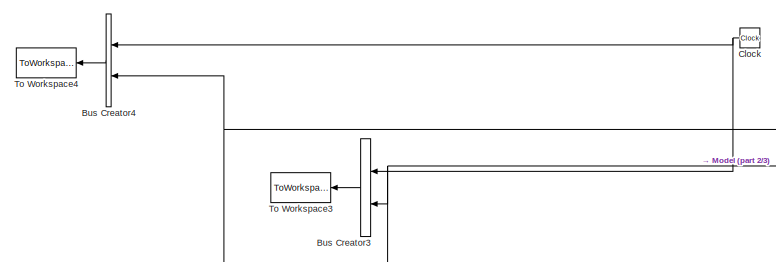
[diagram: root canvas - part 1/3, top left region]
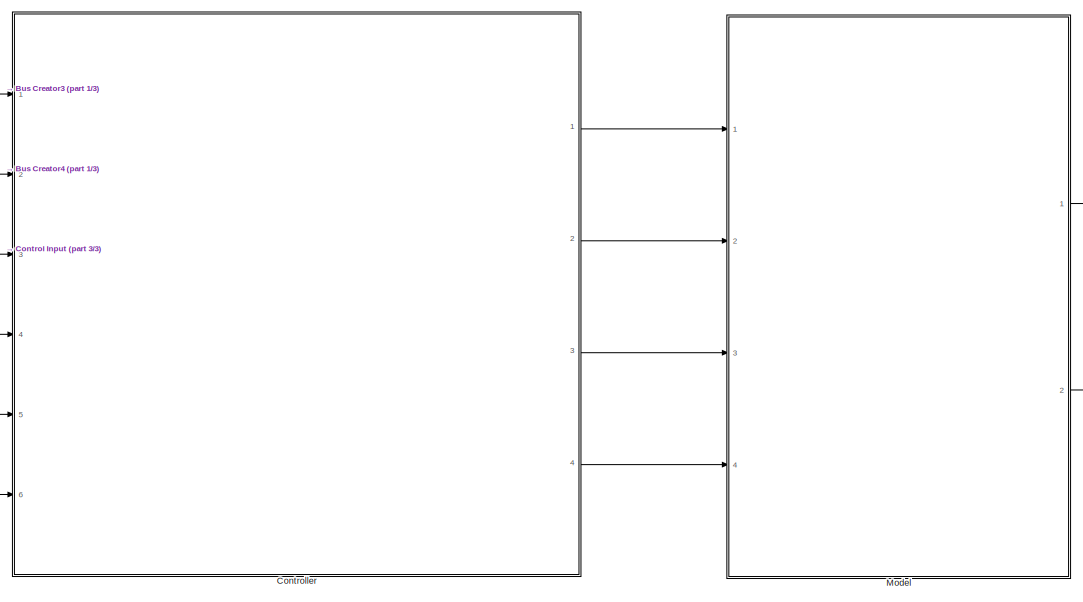
[diagram: root canvas - part 2/3, central region]
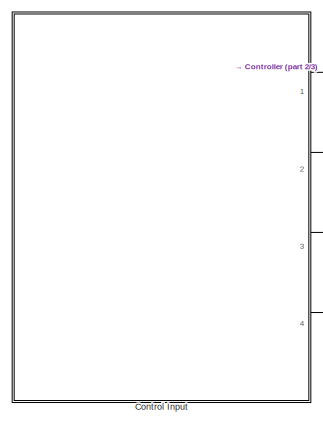
[diagram: root canvas - part 3/3, bottom left region]
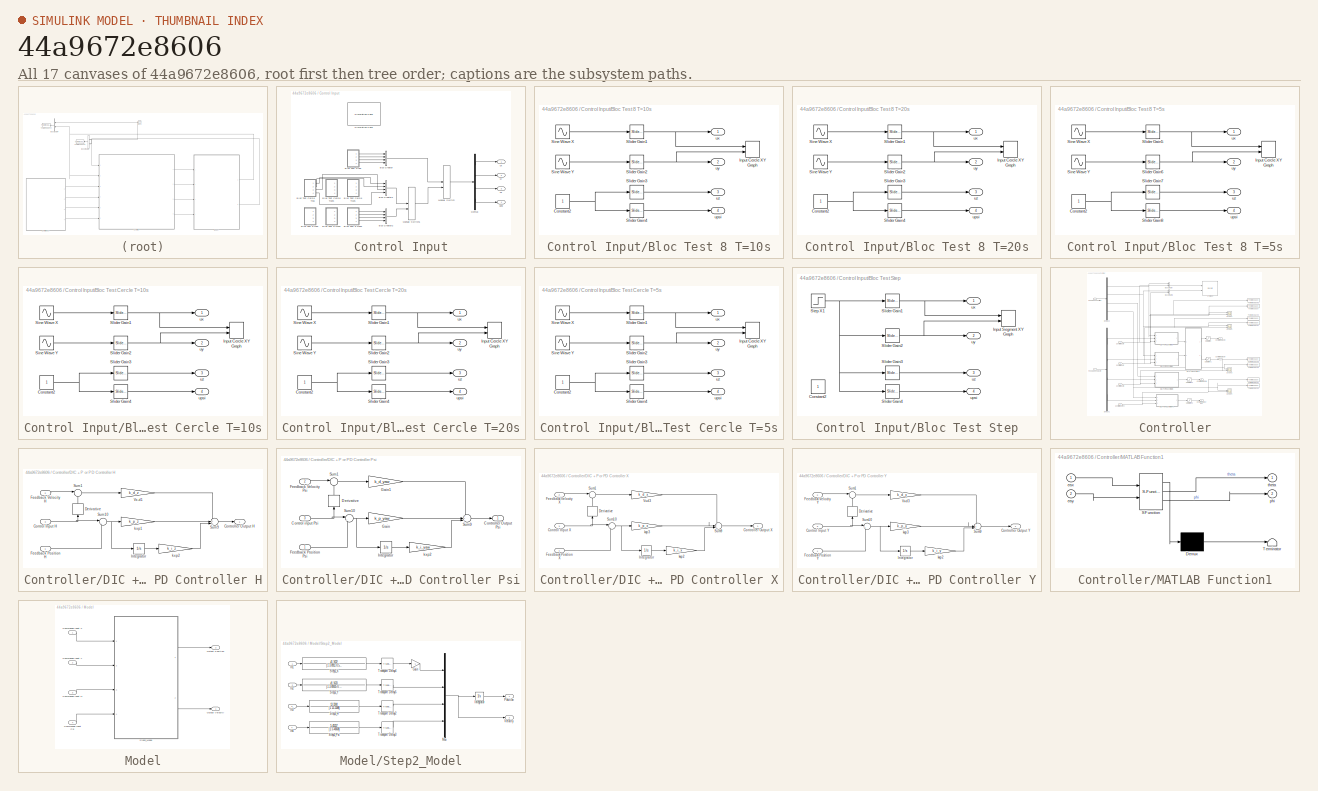
[diagram: thumbnail index - all 17 canvases of the model, root first then tree order]
MODEL slx_44a9672e8606
KIND model
CONFIG AbsTol = auto
CONFIG EnableMultiTasking = on
CONFIG FixedStep = sampleTime
CONFIG MaxStep = auto
CONFIG MinStep = auto
CONFIG RelTol = 1e-3
CONFIG SampleTimeConstraint = Unconstrained
CONFIG SolverName = FixedStepAuto
CONFIG StartTime = 0.0
CONFIG StopTime = 100
BLOCK [BusCreator] Bus Creator3
  DisplayOption = bar
  InheritFromInputs = on
  Inputs = 2
  NameLocation = top
  Ports = [2, 1]
BLOCK [BusCreator] Bus Creator4
  DisplayOption = bar
  InheritFromInputs = on
  Inputs = 2
  NameLocation = top
  Ports = [2, 1]
BLOCK [Clock] Clock
  NameLocation = top
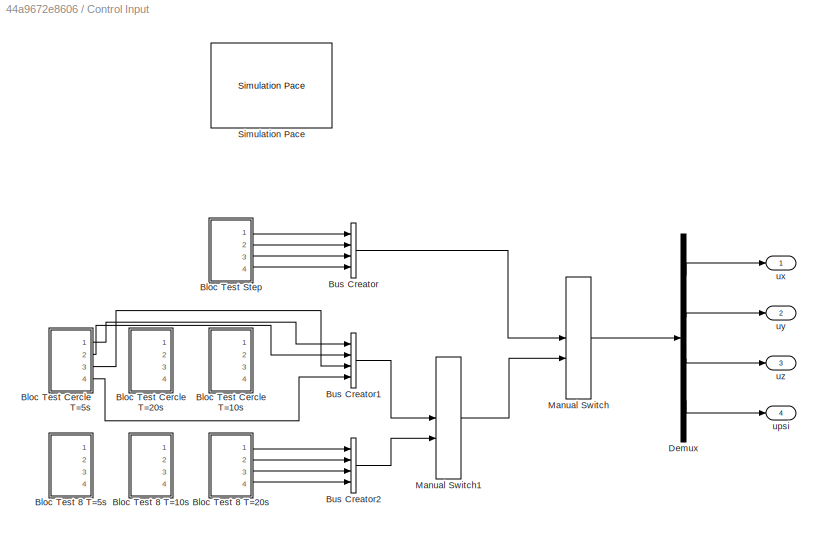
BLOCK [SubSystem] Control Input
  Ports = [0, 4]
  RequestExecContextInheritance = off
BLOCK [SubSystem] Control Input/Bloc Test 8 T=10s
  Ports = [0, 4]
  RequestExecContextInheritance = off
BLOCK [Constant] Control Input/Bloc Test 8 T=10s/Constant2
BLOCK [Record] Control Input/Bloc Test 8 T=10s/Input Cercle XY Graph
  Commented = on
  CompatibilityTag = XY
  FileSettingsInternal = {"entries":[{"content":{"excelSettings":{"content":{},"type":"Streamout.ExcelSettings"}},"type":"Streamout.FileSettingStorage","uuid":"c4616228-9442-4d5d-9d21-8391b6b13516"}],"packageUris":["http://schema.mathworks.com/mf0/streamout_blocks/R2020a"],"version":"1.0"}
  Layout = [1 1]
  Ports = [2]
  SignalsInternal = {"entries":[{"content":{"signals":[{"content":{"blockPath":["TF_TrajectoireFollowing_Segment/Control Input/Bloc Test  8 T=10s/Input Cercle XY Graph"],"channel":[],"dimensions":[1],"domain":"TF_TrajectoireFollowing_Segment/Control Input/Bloc Test  8 T=10s/Input Cercle XY Graph","lineColor":"#a2142f","plots":[1],"port":1,"sid":[],"signalID":76590,"signalName":"XY Graph:1"},"type":"RecordBlkView.Sign...<+643ch>
  VisualizationBindings = {"xyplotplugin":{"info":[{"series":[{"bindingParametersList":[{"parameter":"X-Axis","signalID":76590,"signalName":"XY Graph:1"},{"parameter":"Y-Axis","signalID":76593,"signalName":"XY Graph:2"}],"seriesID":29661}],"subplotID":1}]}}
  st = -1
BLOCK [Sin] Control Input/Bloc Test 8 T=10s/Sine Wave X
  Frequency = 0.65
  Ports = [0, 1]
  SampleTime = 0
BLOCK [Sin] Control Input/Bloc Test 8 T=10s/Sine Wave Y
  Frequency = 1.3
  Ports = [0, 1]
  SampleTime = 0
BLOCK [Reference] Control Input/Bloc Test 8 T=10s/Slider Gain1  REF=simulink/Math
Operations/Slider
Gain
  Ports = [1, 1]
  SourceBlock = simulink/Math\nOperations/Slider\nGain
  SourceProductBaseCode = SL
  SourceType = Slider Gain
BLOCK [Reference] Control Input/Bloc Test 8 T=10s/Slider Gain2  REF=simulink/Math
Operations/Slider
Gain
  Ports = [1, 1]
  SourceBlock = simulink/Math\nOperations/Slider\nGain
  SourceProductBaseCode = SL
  SourceType = Slider Gain
BLOCK [Reference] Control Input/Bloc Test 8 T=10s/Slider Gain3  REF=simulink/Math
Operations/Slider
Gain
  Ports = [1, 1]
  SourceBlock = simulink/Math\nOperations/Slider\nGain
  SourceProductBaseCode = SL
  SourceType = Slider Gain
BLOCK [Reference] Control Input/Bloc Test 8 T=10s/Slider Gain4  REF=simulink/Math
Operations/Slider
Gain
  Ports = [1, 1]
  SourceBlock = simulink/Math\nOperations/Slider\nGain
  SourceProductBaseCode = SL
  SourceType = Slider Gain
BLOCK [Outport] Control Input/Bloc Test 8 T=10s/upsi
  Port = 4
  VectorParamsAs1DForOutWhenUnconnected = off
BLOCK [Outport] Control Input/Bloc Test 8 T=10s/ux
  VectorParamsAs1DForOutWhenUnconnected = off
BLOCK [Outport] Control Input/Bloc Test 8 T=10s/uy
  Port = 2
  VectorParamsAs1DForOutWhenUnconnected = off
BLOCK [Outport] Control Input/Bloc Test 8 T=10s/uz
  Port = 3
  VectorParamsAs1DForOutWhenUnconnected = off
BLOCK [SubSystem] Control Input/Bloc Test 8 T=20s
  Ports = [0, 4]
  RequestExecContextInheritance = off
BLOCK [Constant] Control Input/Bloc Test 8 T=20s/Constant2
BLOCK [Record] Control Input/Bloc Test 8 T=20s/Input Cercle XY Graph
  Commented = on
  CompatibilityTag = XY
  FileSettingsInternal = {"entries":[{"content":{"excelSettings":{"content":{},"type":"Streamout.ExcelSettings"}},"type":"Streamout.FileSettingStorage","uuid":"76c6f109-e4fe-4fb6-9c69-41c085f80ba6"}],"packageUris":["http://schema.mathworks.com/mf0/streamout_blocks/R2020a"],"version":"1.0"}
  Layout = [1 1]
  Ports = [2]
  SignalsInternal = {"entries":[{"content":{"signals":[{"content":{"blockPath":["TF_TrajectoireFollowing_Segment/Control Input/Bloc Test  8 T=20s/Input Cercle XY Graph"],"channel":[],"dimensions":[1],"domain":"TF_TrajectoireFollowing_Segment/Control Input/Bloc Test  8 T=20s/Input Cercle XY Graph","lineColor":"#a2142f","plots":[1],"port":1,"sid":[],"signalID":76598,"signalName":"XY Graph:1"},"type":"RecordBlkView.Sign...<+643ch>
  VisualizationBindings = {"xyplotplugin":{"info":[{"series":[{"bindingParametersList":[{"parameter":"X-Axis","signalID":76598,"signalName":"XY Graph:1"},{"parameter":"Y-Axis","signalID":76601,"signalName":"XY Graph:2"}],"seriesID":37163}],"subplotID":1}]}}
  st = -1
BLOCK [Sin] Control Input/Bloc Test 8 T=20s/Sine Wave X
  Frequency = 0.35
  Ports = [0, 1]
  SampleTime = 0
BLOCK [Sin] Control Input/Bloc Test 8 T=20s/Sine Wave Y
  Frequency = 0.7
  Ports = [0, 1]
  SampleTime = 0
BLOCK [Reference] Control Input/Bloc Test 8 T=20s/Slider Gain1  REF=simulink/Math
Operations/Slider
Gain
  Ports = [1, 1]
  SourceBlock = simulink/Math\nOperations/Slider\nGain
  SourceProductBaseCode = SL
  SourceType = Slider Gain
BLOCK [Reference] Control Input/Bloc Test 8 T=20s/Slider Gain2  REF=simulink/Math
Operations/Slider
Gain
  Ports = [1, 1]
  SourceBlock = simulink/Math\nOperations/Slider\nGain
  SourceProductBaseCode = SL
  SourceType = Slider Gain
BLOCK [Reference] Control Input/Bloc Test 8 T=20s/Slider Gain3  REF=simulink/Math
Operations/Slider
Gain
  Ports = [1, 1]
  SourceBlock = simulink/Math\nOperations/Slider\nGain
  SourceProductBaseCode = SL
  SourceType = Slider Gain
BLOCK [Reference] Control Input/Bloc Test 8 T=20s/Slider Gain4  REF=simulink/Math
Operations/Slider
Gain
  Ports = [1, 1]
  SourceBlock = simulink/Math\nOperations/Slider\nGain
  SourceProductBaseCode = SL
  SourceType = Slider Gain
BLOCK [Outport] Control Input/Bloc Test 8 T=20s/upsi
  Port = 4
  VectorParamsAs1DForOutWhenUnconnected = off
BLOCK [Outport] Control Input/Bloc Test 8 T=20s/ux
  VectorParamsAs1DForOutWhenUnconnected = off
BLOCK [Outport] Control Input/Bloc Test 8 T=20s/uy
  Port = 2
  VectorParamsAs1DForOutWhenUnconnected = off
BLOCK [Outport] Control Input/Bloc Test 8 T=20s/uz
  Port = 3
  VectorParamsAs1DForOutWhenUnconnected = off
BLOCK [SubSystem] Control Input/Bloc Test 8 T=5s
  Ports = [0, 4]
  RequestExecContextInheritance = off
BLOCK [Constant] Control Input/Bloc Test 8 T=5s/Constant2
BLOCK [Record] Control Input/Bloc Test 8 T=5s/Input Cercle XY Graph
  Commented = on
  CompatibilityTag = XY
  FileSettingsInternal = {"entries":[{"content":{"excelSettings":{"content":{},"type":"Streamout.ExcelSettings"}},"type":"Streamout.FileSettingStorage","uuid":"2a20060e-f733-4b72-afce-4417f7fccb0b"}],"packageUris":["http://schema.mathworks.com/mf0/streamout_blocks/R2020a"],"version":"1.0"}
  Layout = [1 1]
  Ports = [2]
  SignalsInternal = {"entries":[{"content":{"signals":[{"content":{"blockPath":["TF_TrajectoireFollowing_Segment/Control Input/Bloc Test  8 T=5s/Input Cercle XY Graph"],"channel":[],"dimensions":[1],"domain":"TF_TrajectoireFollowing_Segment/Control Input/Bloc Test  8 T=5s/Input Cercle XY Graph","lineColor":"#a2142f","plots":[1],"port":1,"sid":[],"signalID":76606,"signalName":"XY Graph:1"},"type":"RecordBlkView.Signal...<+639ch>
  VisualizationBindings = {"xyplotplugin":{"info":[{"series":[{"bindingParametersList":[{"parameter":"X-Axis","signalID":76606,"signalName":"XY Graph:1"},{"parameter":"Y-Axis","signalID":76609,"signalName":"XY Graph:2"}],"seriesID":37458}],"subplotID":1}]}}
  st = -1
BLOCK [Sin] Control Input/Bloc Test 8 T=5s/Sine Wave X
  Ports = [0, 1]
  SampleTime = 0
BLOCK [Sin] Control Input/Bloc Test 8 T=5s/Sine Wave Y
  Frequency = 2
  Ports = [0, 1]
  SampleTime = 0
BLOCK [Reference] Control Input/Bloc Test 8 T=5s/Slider Gain5  REF=simulink/Math
Operations/Slider
Gain
  Ports = [1, 1]
  SourceBlock = simulink/Math\nOperations/Slider\nGain
  SourceProductBaseCode = SL
  SourceType = Slider Gain
BLOCK [Reference] Control Input/Bloc Test 8 T=5s/Slider Gain6  REF=simulink/Math
Operations/Slider
Gain
  Ports = [1, 1]
  SourceBlock = simulink/Math\nOperations/Slider\nGain
  SourceProductBaseCode = SL
  SourceType = Slider Gain
BLOCK [Reference] Control Input/Bloc Test 8 T=5s/Slider Gain7  REF=simulink/Math
Operations/Slider
Gain
  Ports = [1, 1]
  SourceBlock = simulink/Math\nOperations/Slider\nGain
  SourceProductBaseCode = SL
  SourceType = Slider Gain
BLOCK [Reference] Control Input/Bloc Test 8 T=5s/Slider Gain8  REF=simulink/Math
Operations/Slider
Gain
  Ports = [1, 1]
  SourceBlock = simulink/Math\nOperations/Slider\nGain
  SourceProductBaseCode = SL
  SourceType = Slider Gain
BLOCK [Outport] Control Input/Bloc Test 8 T=5s/upsi
  Port = 4
  VectorParamsAs1DForOutWhenUnconnected = off
BLOCK [Outport] Control Input/Bloc Test 8 T=5s/ux
  VectorParamsAs1DForOutWhenUnconnected = off
BLOCK [Outport] Control Input/Bloc Test 8 T=5s/uy
  Port = 2
  VectorParamsAs1DForOutWhenUnconnected = off
BLOCK [Outport] Control Input/Bloc Test 8 T=5s/uz
  Port = 3
  VectorParamsAs1DForOutWhenUnconnected = off
BLOCK [SubSystem] Control Input/Bloc Test Cercle T=10s
  Ports = [0, 4]
  RequestExecContextInheritance = off
BLOCK [Constant] Control Input/Bloc Test Cercle T=10s/Constant2
BLOCK [Record] Control Input/Bloc Test Cercle T=10s/Input Cercle XY Graph
  Commented = on
  CompatibilityTag = XY
  FileSettingsInternal = {"entries":[{"content":{"excelSettings":{"content":{},"type":"Streamout.ExcelSettings"}},"type":"Streamout.FileSettingStorage","uuid":"2ccd6f09-7f4b-44e5-a9c2-25654386dc05"}],"packageUris":["http://schema.mathworks.com/mf0/streamout_blocks/R2020a"],"version":"1.0"}
  Layout = [1 1]
  Ports = [2]
  SignalsInternal = {"entries":[{"content":{"signals":[{"content":{"blockPath":["TF_TrajectoireFollowing_Segment/Control Input/Bloc Test  Cercle T=10s/Input Cercle XY Graph"],"channel":[],"dimensions":[1],"domain":"TF_TrajectoireFollowing_Segment/Control Input/Bloc Test  Cercle T=10s/Input Cercle XY Graph","lineColor":"#a2142f","plots":[1],"port":1,"sid":[],"signalID":76614,"signalName":"XY Graph:1"},"type":"RecordBl...<+663ch>
  VisualizationBindings = {"xyplotplugin":{"info":[{"series":[{"bindingParametersList":[{"parameter":"X-Axis","signalID":76614,"signalName":"XY Graph:1"},{"parameter":"Y-Axis","signalID":76617,"signalName":"XY Graph:2"}],"seriesID":58776}],"subplotID":1}]}}
  st = -1
BLOCK [Sin] Control Input/Bloc Test Cercle T=10s/Sine Wave X
  Frequency = 0.65
  Ports = [0, 1]
  SampleTime = 0
BLOCK [Sin] Control Input/Bloc Test Cercle T=10s/Sine Wave Y
  Frequency = 0.65
  Phase = pi/2
  Ports = [0, 1]
  SampleTime = 0
BLOCK [Reference] Control Input/Bloc Test Cercle T=10s/Slider Gain1  REF=simulink/Math
Operations/Slider
Gain
  Ports = [1, 1]
  SourceBlock = simulink/Math\nOperations/Slider\nGain
  SourceProductBaseCode = SL
  SourceType = Slider Gain
BLOCK [Reference] Control Input/Bloc Test Cercle T=10s/Slider Gain2  REF=simulink/Math
Operations/Slider
Gain
  Ports = [1, 1]
  SourceBlock = simulink/Math\nOperations/Slider\nGain
  SourceProductBaseCode = SL
  SourceType = Slider Gain
BLOCK [Reference] Control Input/Bloc Test Cercle T=10s/Slider Gain3  REF=simulink/Math
Operations/Slider
Gain
  Ports = [1, 1]
  SourceBlock = simulink/Math\nOperations/Slider\nGain
  SourceProductBaseCode = SL
  SourceType = Slider Gain
BLOCK [Reference] Control Input/Bloc Test Cercle T=10s/Slider Gain4  REF=simulink/Math
Operations/Slider
Gain
  Ports = [1, 1]
  SourceBlock = simulink/Math\nOperations/Slider\nGain
  SourceProductBaseCode = SL
  SourceType = Slider Gain
BLOCK [Outport] Control Input/Bloc Test Cercle T=10s/upsi
  Port = 4
  VectorParamsAs1DForOutWhenUnconnected = off
BLOCK [Outport] Control Input/Bloc Test Cercle T=10s/ux
  VectorParamsAs1DForOutWhenUnconnected = off
BLOCK [Outport] Control Input/Bloc Test Cercle T=10s/uy
  Port = 2
  VectorParamsAs1DForOutWhenUnconnected = off
BLOCK [Outport] Control Input/Bloc Test Cercle T=10s/uz
  Port = 3
  VectorParamsAs1DForOutWhenUnconnected = off
BLOCK [SubSystem] Control Input/Bloc Test Cercle T=20s
  Ports = [0, 4]
  RequestExecContextInheritance = off
BLOCK [Constant] Control Input/Bloc Test Cercle T=20s/Constant2
BLOCK [Record] Control Input/Bloc Test Cercle T=20s/Input Cercle XY Graph
  Commented = on
  CompatibilityTag = XY
  FileSettingsInternal = {"entries":[{"content":{"excelSettings":{"content":{},"type":"Streamout.ExcelSettings"}},"type":"Streamout.FileSettingStorage","uuid":"f27aa7e8-62ac-4aa5-b51d-eb7641399cc6"}],"packageUris":["http://schema.mathworks.com/mf0/streamout_blocks/R2020a"],"version":"1.0"}
  Layout = [1 1]
  Ports = [2]
  SignalsInternal = {"entries":[{"content":{"signals":[{"content":{"blockPath":["TF_TrajectoireFollowing_Segment/Control Input/Bloc Test  Cercle T=20s/Input Cercle XY Graph"],"channel":[],"dimensions":[1],"domain":"TF_TrajectoireFollowing_Segment/Control Input/Bloc Test  Cercle T=20s/Input Cercle XY Graph","lineColor":"#a2142f","plots":[1],"port":1,"sid":[],"signalID":76622,"signalName":"XY Graph:1"},"type":"RecordBl...<+663ch>
  VisualizationBindings = {"xyplotplugin":{"info":[{"series":[{"bindingParametersList":[{"parameter":"X-Axis","signalID":76622,"signalName":"XY Graph:1"},{"parameter":"Y-Axis","signalID":76625,"signalName":"XY Graph:2"}],"seriesID":62067}],"subplotID":1}]}}
  st = -1
BLOCK [Sin] Control Input/Bloc Test Cercle T=20s/Sine Wave X
  Frequency = 0.35
  Ports = [0, 1]
  SampleTime = 0
BLOCK [Sin] Control Input/Bloc Test Cercle T=20s/Sine Wave Y
  Frequency = 0.35
  Phase = pi/2
  Ports = [0, 1]
  SampleTime = 0
BLOCK [Reference] Control Input/Bloc Test Cercle T=20s/Slider Gain1  REF=simulink/Math
Operations/Slider
Gain
  Ports = [1, 1]
  SourceBlock = simulink/Math\nOperations/Slider\nGain
  SourceProductBaseCode = SL
  SourceType = Slider Gain
BLOCK [Reference] Control Input/Bloc Test Cercle T=20s/Slider Gain2  REF=simulink/Math
Operations/Slider
Gain
  Ports = [1, 1]
  SourceBlock = simulink/Math\nOperations/Slider\nGain
  SourceProductBaseCode = SL
  SourceType = Slider Gain
BLOCK [Reference] Control Input/Bloc Test Cercle T=20s/Slider Gain3  REF=simulink/Math
Operations/Slider
Gain
  Ports = [1, 1]
  SourceBlock = simulink/Math\nOperations/Slider\nGain
  SourceProductBaseCode = SL
  SourceType = Slider Gain
BLOCK [Reference] Control Input/Bloc Test Cercle T=20s/Slider Gain4  REF=simulink/Math
Operations/Slider
Gain
  Ports = [1, 1]
  SourceBlock = simulink/Math\nOperations/Slider\nGain
  SourceProductBaseCode = SL
  SourceType = Slider Gain
BLOCK [Outport] Control Input/Bloc Test Cercle T=20s/upsi
  Port = 4
  VectorParamsAs1DForOutWhenUnconnected = off
BLOCK [Outport] Control Input/Bloc Test Cercle T=20s/ux
  VectorParamsAs1DForOutWhenUnconnected = off
BLOCK [Outport] Control Input/Bloc Test Cercle T=20s/uy
  Port = 2
  VectorParamsAs1DForOutWhenUnconnected = off
BLOCK [Outport] Control Input/Bloc Test Cercle T=20s/uz
  Port = 3
  VectorParamsAs1DForOutWhenUnconnected = off
BLOCK [SubSystem] Control Input/Bloc Test Cercle T=5s
  Ports = [0, 4]
  RequestExecContextInheritance = off
BLOCK [Constant] Control Input/Bloc Test Cercle T=5s/Constant2
BLOCK [Record] Control Input/Bloc Test Cercle T=5s/Input Cercle XY Graph
  Commented = on
  CompatibilityTag = XY
  FileSettingsInternal = {"entries":[{"content":{"excelSettings":{"content":{},"type":"Streamout.ExcelSettings"}},"type":"Streamout.FileSettingStorage","uuid":"c0d29a17-4a30-4159-b996-24eac29678bd"}],"packageUris":["http://schema.mathworks.com/mf0/streamout_blocks/R2020a"],"version":"1.0"}
  Layout = [1 1]
  Ports = [2]
  SignalsInternal = {"entries":[{"content":{"signals":[{"content":{"blockPath":["TF_TrajectoireFollowing_Segment/Control Input/Bloc Test  Cercle T=5s/Input Cercle XY Graph"],"channel":[],"dimensions":[1],"domain":"TF_TrajectoireFollowing_Segment/Control Input/Bloc Test  Cercle T=5s/Input Cercle XY Graph","lineColor":"#a2142f","plots":[1],"port":1,"sid":[],"signalID":76630,"signalName":"XY Graph:1"},"type":"RecordBlkV...<+659ch>
  VisualizationBindings = {"xyplotplugin":{"info":[{"series":[{"bindingParametersList":[{"parameter":"X-Axis","signalID":76630,"signalName":"XY Graph:1"},{"parameter":"Y-Axis","signalID":76633,"signalName":"XY Graph:2"}],"seriesID":15496}],"subplotID":1}]}}
  st = -1
BLOCK [Sin] Control Input/Bloc Test Cercle T=5s/Sine Wave X
  Ports = [0, 1]
  SampleTime = 0
BLOCK [Sin] Control Input/Bloc Test Cercle T=5s/Sine Wave Y
  Phase = pi/2
  Ports = [0, 1]
  SampleTime = 0
BLOCK [Reference] Control Input/Bloc Test Cercle T=5s/Slider Gain1  REF=simulink/Math
Operations/Slider
Gain
  Ports = [1, 1]
  SourceBlock = simulink/Math\nOperations/Slider\nGain
  SourceProductBaseCode = SL
  SourceType = Slider Gain
BLOCK [Reference] Control Input/Bloc Test Cercle T=5s/Slider Gain2  REF=simulink/Math
Operations/Slider
Gain
  Ports = [1, 1]
  SourceBlock = simulink/Math\nOperations/Slider\nGain
  SourceProductBaseCode = SL
  SourceType = Slider Gain
BLOCK [Reference] Control Input/Bloc Test Cercle T=5s/Slider Gain3  REF=simulink/Math
Operations/Slider
Gain
  Ports = [1, 1]
  SourceBlock = simulink/Math\nOperations/Slider\nGain
  SourceProductBaseCode = SL
  SourceType = Slider Gain
BLOCK [Reference] Control Input/Bloc Test Cercle T=5s/Slider Gain4  REF=simulink/Math
Operations/Slider
Gain
  Ports = [1, 1]
  SourceBlock = simulink/Math\nOperations/Slider\nGain
  SourceProductBaseCode = SL
  SourceType = Slider Gain
BLOCK [Outport] Control Input/Bloc Test Cercle T=5s/upsi
  Port = 4
  VectorParamsAs1DForOutWhenUnconnected = off
BLOCK [Outport] Control Input/Bloc Test Cercle T=5s/ux
  VectorParamsAs1DForOutWhenUnconnected = off
BLOCK [Outport] Control Input/Bloc Test Cercle T=5s/uy
  Port = 2
  VectorParamsAs1DForOutWhenUnconnected = off
BLOCK [Outport] Control Input/Bloc Test Cercle T=5s/uz
  Port = 3
  VectorParamsAs1DForOutWhenUnconnected = off
BLOCK [SubSystem] Control Input/Bloc Test Step
  Ports = [0, 4]
  RequestExecContextInheritance = off
BLOCK [Constant] Control Input/Bloc Test Step/Constant2
BLOCK [Record] Control Input/Bloc Test Step/Input Segment XY Graph
  Commented = on
  CompatibilityTag = XY
  FileSettingsInternal = {"entries":[{"content":{"excelSettings":{"content":{},"type":"Streamout.ExcelSettings"}},"type":"Streamout.FileSettingStorage","uuid":"6933d473-09aa-4c90-8556-9d3b1625d3cb"}],"packageUris":["http://schema.mathworks.com/mf0/streamout_blocks/R2020a"],"version":"1.0"}
  Layout = [1 1]
  Ports = [2]
  SignalsInternal = {"entries":[{"content":{"signals":[{"content":{"blockPath":["TF_TrajectoireFollowing_Segment/Control Input/Bloc Test  Step/Input Segment XY Graph"],"channel":[],"dimensions":[1],"domain":"TF_TrajectoireFollowing_Segment/Control Input/Bloc Test  Step/Input Segment XY Graph","lineColor":"#a2142f","plots":[1],"port":1,"sid":[],"signalID":76638,"signalName":"XY Graph:1"},"type":"RecordBlkView.Signal",...<+635ch>
  VisualizationBindings = {"xyplotplugin":{"info":[{"series":[{"bindingParametersList":[{"parameter":"X-Axis","signalID":76638,"signalName":"XY Graph:1"},{"parameter":"Y-Axis","signalID":76641,"signalName":"XY Graph:2"}],"seriesID":1418}],"subplotID":1}]}}
  st = -1
BLOCK [Reference] Control Input/Bloc Test Step/Slider Gain1  REF=simulink/Math
Operations/Slider
Gain
  Ports = [1, 1]
  SourceBlock = simulink/Math\nOperations/Slider\nGain
  SourceProductBaseCode = SL
  SourceType = Slider Gain
BLOCK [Reference] Control Input/Bloc Test Step/Slider Gain2  REF=simulink/Math
Operations/Slider
Gain
  Ports = [1, 1]
  SourceBlock = simulink/Math\nOperations/Slider\nGain
  SourceProductBaseCode = SL
  SourceType = Slider Gain
BLOCK [Reference] Control Input/Bloc Test Step/Slider Gain3  REF=simulink/Math
Operations/Slider
Gain
  Ports = [1, 1]
  SourceBlock = simulink/Math\nOperations/Slider\nGain
  SourceProductBaseCode = SL
  SourceType = Slider Gain
BLOCK [Reference] Control Input/Bloc Test Step/Slider Gain4  REF=simulink/Math
Operations/Slider
Gain
  Ports = [1, 1]
  SourceBlock = simulink/Math\nOperations/Slider\nGain
  SourceProductBaseCode = SL
  SourceType = Slider Gain
BLOCK [Step] Control Input/Bloc Test Step/Step X1
  SampleTime = 0
  Time = 5
BLOCK [Outport] Control Input/Bloc Test Step/upsi
  Port = 4
  VectorParamsAs1DForOutWhenUnconnected = off
BLOCK [Outport] Control Input/Bloc Test Step/ux
  VectorParamsAs1DForOutWhenUnconnected = off
BLOCK [Outport] Control Input/Bloc Test Step/uy
  Port = 2
  VectorParamsAs1DForOutWhenUnconnected = off
BLOCK [Outport] Control Input/Bloc Test Step/uz
  Port = 3
  VectorParamsAs1DForOutWhenUnconnected = off
BLOCK [BusCreator] Control Input/Bus Creator
  DisplayOption = bar
  InheritFromInputs = on
  Inputs = 4
  Ports = [4, 1]
BLOCK [BusCreator] Control Input/Bus Creator1
  DisplayOption = bar
  InheritFromInputs = on
  Inputs = 4
  Ports = [4, 1]
BLOCK [BusCreator] Control Input/Bus Creator2
  DisplayOption = bar
  InheritFromInputs = on
  Inputs = 4
  Ports = [4, 1]
BLOCK [Demux] Control Input/Demux
  Ports = [1, 4]
BLOCK [ManualSwitch] Control Input/Manual Switch
  CurrentSetting = 0
BLOCK [ManualSwitch] Control Input/Manual Switch1
  CurrentSetting = 0
BLOCK [Reference] Control Input/Simulation Pace  REF=aerolibanimutils/Simulation Pace
  AttributesFormatString = %<SleepMode>\n%<SimulationPace> sec/sec
  Ports = []
  SourceBlock = aerolibanimutils/Simulation Pace
  SourceProductBaseCode = AE
  SourceType = Simulation Pace
BLOCK [Outport] Control Input/upsi
  Port = 4
  VectorParamsAs1DForOutWhenUnconnected = off
BLOCK [Outport] Control Input/ux
  VectorParamsAs1DForOutWhenUnconnected = off
BLOCK [Outport] Control Input/uy
  Port = 2
  VectorParamsAs1DForOutWhenUnconnected = off
BLOCK [Outport] Control Input/uz
  Port = 3
  VectorParamsAs1DForOutWhenUnconnected = off
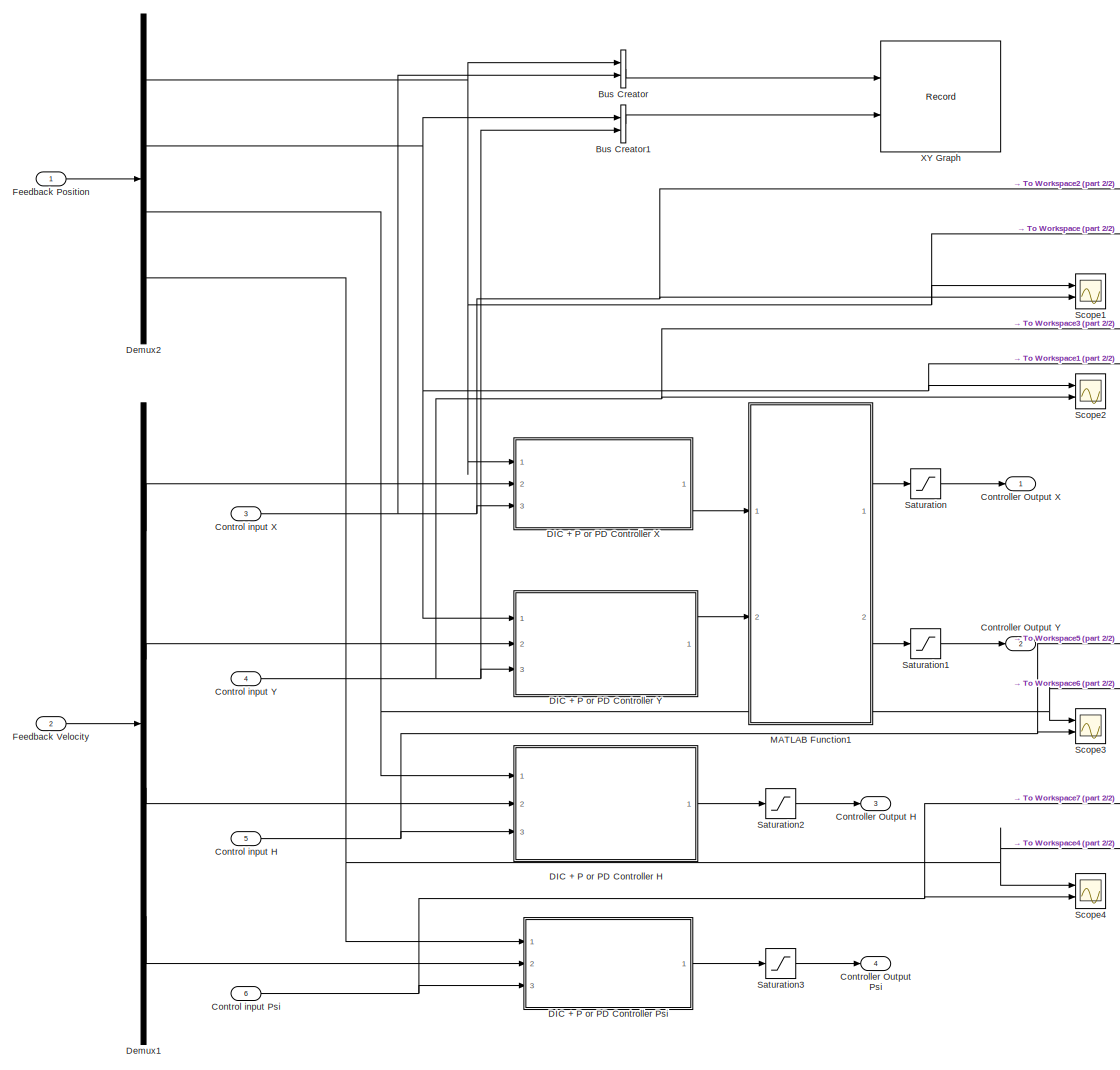
[diagram: Controller - part 1/2, most of the canvas]
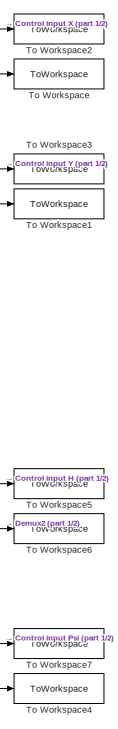
[diagram: Controller - part 2/2, middle right region]
BLOCK [SubSystem] Controller
  Ports = [6, 4]
  RequestExecContextInheritance = off
BLOCK [BusCreator] Controller/Bus Creator
  DisplayOption = bar
  InheritFromInputs = on
  Inputs = 2
  Ports = [2, 1]
BLOCK [BusCreator] Controller/Bus Creator1
  DisplayOption = bar
  InheritFromInputs = on
  Inputs = 2
  Ports = [2, 1]
BLOCK [Inport] Controller/Control input H
  Port = 5
BLOCK [Inport] Controller/Control input Psi
  Port = 6
BLOCK [Inport] Controller/Control input X
  Port = 3
BLOCK [Inport] Controller/Control input Y
  Port = 4
BLOCK [Outport] Controller/Controller Output H
  Port = 3
  VectorParamsAs1DForOutWhenUnconnected = off
BLOCK [Outport] Controller/Controller Output Psi
  Port = 4
  VectorParamsAs1DForOutWhenUnconnected = off
BLOCK [Outport] Controller/Controller Output X
  VectorParamsAs1DForOutWhenUnconnected = off
BLOCK [Outport] Controller/Controller Output Y
  Port = 2
  VectorParamsAs1DForOutWhenUnconnected = off
BLOCK [SubSystem] Controller/DIC + P or PD Controller H
  Ports = [3, 1]
  RequestExecContextInheritance = off
BLOCK [Inport] Controller/DIC + P or PD Controller H/Control Input H
  Port = 3
BLOCK [Outport] Controller/DIC + P or PD Controller H/Controller Output H
  VectorParamsAs1DForOutWhenUnconnected = off
BLOCK [Derivative] Controller/DIC + P or PD Controller H/Derivative
  NameLocation = right
BLOCK [Inport] Controller/DIC + P or PD Controller H/Feedback Position H
BLOCK [Inport] Controller/DIC + P or PD Controller H/Feedback Velocity H
  Port = 2
BLOCK [Integrator] Controller/DIC + P or PD Controller H/Integrator
  Ports = [1, 1]
BLOCK [Sum] Controller/DIC + P or PD Controller H/Sum1
  Inputs = |-+
  Ports = [2, 1]
BLOCK [Sum] Controller/DIC + P or PD Controller H/Sum10
  Inputs = |+-
  Ports = [2, 1]
BLOCK [Sum] Controller/DIC + P or PD Controller H/Sum9
  Inputs = +++|
  Ports = [3, 1]
BLOCK [Gain] Controller/DIC + P or PD Controller H/Vx-d1
  Gain = k_d_z
  NameLocation = top
BLOCK [Gain] Controller/DIC + P or PD Controller H/kxp1
  Gain = k_p_z
  NameLocation = top
BLOCK [Gain] Controller/DIC + P or PD Controller H/kxp2
  Gain = k_i_z
  NameLocation = top
BLOCK [SubSystem] Controller/DIC + P or PD Controller Psi
  Ports = [3, 1]
  RequestExecContextInheritance = off
BLOCK [Inport] Controller/DIC + P or PD Controller Psi/Control input Psi
  Port = 3
BLOCK [Outport] Controller/DIC + P or PD Controller Psi/Controller Output Psi
  VectorParamsAs1DForOutWhenUnconnected = off
BLOCK [Derivative] Controller/DIC + P or PD Controller Psi/Derivative
  NameLocation = right
BLOCK [Inport] Controller/DIC + P or PD Controller Psi/Feedback Position Psi
BLOCK [Inport] Controller/DIC + P or PD Controller Psi/Feedback Velocity Psi
  Port = 2
BLOCK [Gain] Controller/DIC + P or PD Controller Psi/Gain
  Gain = k_p_yaw
BLOCK [Gain] Controller/DIC + P or PD Controller Psi/Gain1
  Gain = k_d_yaw
BLOCK [Integrator] Controller/DIC + P or PD Controller Psi/Integrator
  Ports = [1, 1]
BLOCK [Sum] Controller/DIC + P or PD Controller Psi/Sum1
  Inputs = |-+
  Ports = [2, 1]
BLOCK [Sum] Controller/DIC + P or PD Controller Psi/Sum10
  Inputs = |+-
  Ports = [2, 1]
BLOCK [Sum] Controller/DIC + P or PD Controller Psi/Sum9
  Inputs = +++|
  Ports = [3, 1]
BLOCK [Gain] Controller/DIC + P or PD Controller Psi/kxp2
  Gain = k_i_yaw
  NameLocation = top
BLOCK [SubSystem] Controller/DIC + P or PD Controller X
  Ports = [3, 1]
  RequestExecContextInheritance = off
BLOCK [Inport] Controller/DIC + P or PD Controller X/Control Input X
  Port = 3
BLOCK [Outport] Controller/DIC + P or PD Controller X/Controller Output X
  VectorParamsAs1DForOutWhenUnconnected = off
BLOCK [Derivative] Controller/DIC + P or PD Controller X/Derivative
  NameLocation = right
BLOCK [Inport] Controller/DIC + P or PD Controller X/Feedback Position X
BLOCK [Inport] Controller/DIC + P or PD Controller X/Feedback Velocity X
  Port = 2
BLOCK [Integrator] Controller/DIC + P or PD Controller X/Integrator
  Ports = [1, 1]
BLOCK [Sum] Controller/DIC + P or PD Controller X/Sum1
  Inputs = |-+
  Ports = [2, 1]
BLOCK [Sum] Controller/DIC + P or PD Controller X/Sum10
  Inputs = |+-
  Ports = [2, 1]
BLOCK [Sum] Controller/DIC + P or PD Controller X/Sum9
  Inputs = +++|
  Ports = [3, 1]
BLOCK [Gain] Controller/DIC + P or PD Controller X/Vx-d3
  Gain = k_d_x
  NameLocation = top
BLOCK [Gain] Controller/DIC + P or PD Controller X/kxp2
  Gain = k_i_x
  NameLocation = top
BLOCK [Gain] Controller/DIC + P or PD Controller X/kxp3
  Gain = k_p_x
  NameLocation = top
BLOCK [SubSystem] Controller/DIC + P or PD Controller Y
  Ports = [3, 1]
  RequestExecContextInheritance = off
BLOCK [Inport] Controller/DIC + P or PD Controller Y/Control Input Y
  Port = 3
BLOCK [Outport] Controller/DIC + P or PD Controller Y/Controller Output Y
  VectorParamsAs1DForOutWhenUnconnected = off
BLOCK [Derivative] Controller/DIC + P or PD Controller Y/Derivative
  NameLocation = right
BLOCK [Inport] Controller/DIC + P or PD Controller Y/Feedback Position Y
BLOCK [Inport] Controller/DIC + P or PD Controller Y/Feedback Velocity Y
  Port = 2
BLOCK [Integrator] Controller/DIC + P or PD Controller Y/Integrator
  Ports = [1, 1]
BLOCK [Sum] Controller/DIC + P or PD Controller Y/Sum1
  Inputs = |-+
  Ports = [2, 1]
BLOCK [Sum] Controller/DIC + P or PD Controller Y/Sum10
  Inputs = |+-
  Ports = [2, 1]
BLOCK [Sum] Controller/DIC + P or PD Controller Y/Sum9
  Inputs = +++|
  Ports = [3, 1]
BLOCK [Gain] Controller/DIC + P or PD Controller Y/Vx-d3
  Gain = k_d_y
  NameLocation = top
BLOCK [Gain] Controller/DIC + P or PD Controller Y/kxp2
  Gain = k_i_y
  NameLocation = top
BLOCK [Gain] Controller/DIC + P or PD Controller Y/kxp3
  Gain = k_p_y
  NameLocation = top
BLOCK [Demux] Controller/Demux1
  Ports = [1, 4]
BLOCK [Demux] Controller/Demux2
  Ports = [1, 4]
BLOCK [Inport] Controller/Feedback Position
BLOCK [Inport] Controller/Feedback Velocity
  Port = 2
BLOCK [SubSystem] Controller/MATLAB Function1
  ErrorFcn = Stateflow.Translate.translate
  PermitHierarchicalResolution = ExplicitOnly
  Ports = [2, 2]
  RequestExecContextInheritance = off
  SFBlockType = MATLAB Function
  TreatAsAtomicUnit = on
BLOCK [Demux] Controller/MATLAB Function1/ Demux 
  Outputs = 1
  Ports = [1, 1]
BLOCK [S-Function] Controller/MATLAB Function1/ SFunction 
  EnableBusSupport = on
  FunctionName = sf_sfun
  PortCounts = [2 3]
  Ports = [2, 3]
  SFcnIsStateOwnerBlock = off
  SFunctionDeploymentMode = off
  Tag = Stateflow S-Function 12
BLOCK [Terminator] Controller/MATLAB Function1/ Terminator 
BLOCK [Inport] Controller/MATLAB Function1/eax
BLOCK [Inport] Controller/MATLAB Function1/eay
  Port = 2
BLOCK [Outport] Controller/MATLAB Function1/phi
  Port = 2
  VectorParamsAs1DForOutWhenUnconnected = off
BLOCK [Outport] Controller/MATLAB Function1/theta
  VectorParamsAs1DForOutWhenUnconnected = off
BLOCK [Saturate] Controller/Saturation
  LowerLimit = -saturation_x
  UpperLimit = saturation_x
BLOCK [Saturate] Controller/Saturation1
  LowerLimit = -saturation_y
  UpperLimit = saturation_y
BLOCK [Saturate] Controller/Saturation2
  LowerLimit = -saturation_z
  UpperLimit = saturation_z
BLOCK [Saturate] Controller/Saturation3
  LowerLimit = -saturation_psi
  UpperLimit = saturation_psi
BLOCK [Scope] Controller/Scope1
  Floating = off
  NumInputPorts = 2
  Ports = [2]
  ScopeSpecificationString = Simulink.scopes.TimeScopeBlockCfg('CurrentConfiguration', extmgr.ConfigurationSet(extmgr.Configuration('Core','General UI',true,'FigureColor',[1 1 1]),extmgr.Configuration('Core','Source UI',true),extmgr.Configuration('Sources','WiredSimulink',true,'DataLoggingVariableName','ScopeData4'),extmgr.Configuration('Visuals','Time Domain',true,'SerializedDisplays',{struct('MinYLimReal','-1.52394','MaxYLi...<+2340ch>
BLOCK [Scope] Controller/Scope2
  Floating = off
  NumInputPorts = 2
  Ports = [2]
  ScopeSpecificationString = Simulink.scopes.TimeScopeBlockCfg('CurrentConfiguration', extmgr.ConfigurationSet(extmgr.Configuration('Core','General UI',true,'FigureColor',[1 1 1]),extmgr.Configuration('Core','Source UI',true),extmgr.Configuration('Sources','WiredSimulink',true,'DataLoggingVariableName','ScopeData1'),extmgr.Configuration('Visuals','Time Domain',true,'SerializedDisplays',{struct('MinYLimReal','-1.63898','MaxYLi...<+2340ch>
BLOCK [Scope] Controller/Scope3
  Floating = off
  NumInputPorts = 2
  Ports = [2]
  ScopeSpecificationString = Simulink.scopes.TimeScopeBlockCfg('CurrentConfiguration', extmgr.ConfigurationSet(extmgr.Configuration('Core','General UI',true,'FigureColor',[1 1 1]),extmgr.Configuration('Core','Source UI',true),extmgr.Configuration('Sources','WiredSimulink',true,'DataLoggingVariableName','ScopeData2'),extmgr.Configuration('Visuals','Time Domain',true,'SerializedDisplays',{struct('MinYLimReal','-0.12554','MaxYLi...<+2340ch>
BLOCK [Scope] Controller/Scope4
  Floating = off
  NumInputPorts = 2
  Ports = [2]
  ScopeSpecificationString = Simulink.scopes.TimeScopeBlockCfg('CurrentConfiguration', extmgr.ConfigurationSet(extmgr.Configuration('Core','General UI',true,'FigureColor',[1 1 1]),extmgr.Configuration('Core','Source UI',true),extmgr.Configuration('Sources','WiredSimulink',true,'DataLoggingVariableName','ScopeData3'),extmgr.Configuration('Visuals','Time Domain',true,'SerializedDisplays',{struct('MinYLimReal','-0.12562','MaxYLi...<+2342ch>
BLOCK [ToWorkspace] Controller/To Workspace
  FixptAsFi = on
  MaxDataPoints = inf
  Ports = [1]
  SampleTime = -1
  VariableName = N4_Step1_Out_X
BLOCK [ToWorkspace] Controller/To Workspace1
  FixptAsFi = on
  MaxDataPoints = inf
  Ports = [1]
  SampleTime = -1
  VariableName = N4_Step1_Out_Y
BLOCK [ToWorkspace] Controller/To Workspace2
  FixptAsFi = on
  MaxDataPoints = inf
  Ports = [1]
  SampleTime = -1
  VariableName = N4_Step1_In_X
BLOCK [ToWorkspace] Controller/To Workspace3
  FixptAsFi = on
  MaxDataPoints = inf
  Ports = [1]
  SampleTime = -1
  VariableName = N4_Step1_In_Y
BLOCK [ToWorkspace] Controller/To Workspace4
  FixptAsFi = on
  MaxDataPoints = inf
  Ports = [1]
  SampleTime = -1
  VariableName = N4_Step1_Out_Psi
BLOCK [ToWorkspace] Controller/To Workspace5
  FixptAsFi = on
  MaxDataPoints = inf
  Ports = [1]
  SampleTime = -1
  VariableName = N4_Step1_In_H
BLOCK [ToWorkspace] Controller/To Workspace6
  FixptAsFi = on
  MaxDataPoints = inf
  Ports = [1]
  SampleTime = -1
  VariableName = N4_Step1_Out_H
BLOCK [ToWorkspace] Controller/To Workspace7
  FixptAsFi = on
  MaxDataPoints = inf
  Ports = [1]
  SampleTime = -1
  VariableName = N4_Step1_In_Psi
BLOCK [Record] Controller/XY Graph
  CompatibilityTag = XY
  FileSettingsInternal = {"entries":[{"content":{"excelSettings":{"content":{},"type":"Streamout.ExcelSettings"}},"type":"Streamout.FileSettingStorage","uuid":"f9d9ff59-c186-4da6-ac82-cd6f43ef9ca9"}],"packageUris":["http://schema.mathworks.com/mf0/streamout_blocks/R2020a"],"version":"1.0"}
  Layout = [1 1]
  Ports = [2]
  SignalsInternal = {"entries":[{"content":{"signals":[{"content":{"blockPath":["TF_TrajectoireFollowing_Segment/Controller/XY Graph"],"channel":[],"dimensions":[1],"domain":"TF_TrajectoireFollowing_Segment/Controller/XY Graph","hasChildren":true,"lineColor":"#edb120","plots":[],"port":1,"sid":[""],"signalID":78209,"signalName":"Bus\nCreator"},"type":"RecordBlkView.Signal","uuid":"21270216-b444-45f3-8b99-29d8dc3cd5b5...<+2188ch>
  VisualizationBindings = {"xyplotplugin":{"info":[{"series":[{"bindingParametersList":[{"parameter":"X-Axis","signalID":78215,"signalName":"Bus\nCreator.signal1"},{"parameter":"Y-Axis","signalID":78227,"signalName":"Bus\nCreator1.signal1"}],"seriesID":601},{"bindingParametersList":[{"parameter":"X-Axis","signalID":78219,"signalName":"Bus\nCreator.signal2"},{"parameter":"Y-Axis","signalID":78231,"signalName":"Bus\nCreator1...<+46ch>
BLOCK [SubSystem] Model
  Ports = [4, 2]
  RequestExecContextInheritance = off
BLOCK [Inport] Model/Commande Input H
  Port = 3
BLOCK [Inport] Model/Commande Input Psi
  Port = 4
BLOCK [Inport] Model/Commande Input X
BLOCK [Inport] Model/Commande Input Y
  Port = 2
BLOCK [Outport] Model/Output Position
  NameLocation = top
  Port = 2
  VectorParamsAs1DForOutWhenUnconnected = off
BLOCK [Outport] Model/Output Velocity
  NameLocation = top
  VectorParamsAs1DForOutWhenUnconnected = off
BLOCK [SubSystem] Model/Step2_Model
  Ports = [4, 2]
  RequestExecContextInheritance = off
BLOCK [Gain] Model/Step2_Model/Gain
  Gain = -1
BLOCK [Inport] Model/Step2_Model/In1
BLOCK [Inport] Model/Step2_Model/In2
  Port = 2
BLOCK [Inport] Model/Step2_Model/In3
  Port = 3
BLOCK [Inport] Model/Step2_Model/In4
  Port = 4
BLOCK [Integrator] Model/Step2_Model/Integrator
  Ports = [1, 1]
BLOCK [Mux] Model/Step2_Model/Mux
  DisplayOption = bar
  Ports = [4, 1]
BLOCK [Outport] Model/Step2_Model/Position
  VectorParamsAs1DForOutWhenUnconnected = off
BLOCK [TransferFcn] Model/Step2_Model/Step2_H
  Denominator = [1 13.2188]
  Numerator = 13.2244
BLOCK [TransferFcn] Model/Step2_Model/Step2_Psi
  Denominator = [1 5.43658]
  Numerator = 5.45157
BLOCK [TransferFcn] Model/Step2_Model/Step2_X
  Denominator = [1 3.8911 0.529635]
  Numerator = 41.1632
BLOCK [TransferFcn] Model/Step2_Model/Step2_Y
  Denominator = [1 3.89105 0.529839]
  Numerator = 41.1633
BLOCK [TransportDelay] Model/Step2_Model/Transport Delay2
  DelayTime = 0.0344
  Ports = [1, 1]
BLOCK [TransportDelay] Model/Step2_Model/Transport Delay3
  DelayTime = 0.0313
  Ports = [1, 1]
BLOCK [TransportDelay] Model/Step2_Model/Transport Delay4
  DelayTime = 0.0289
  Ports = [1, 1]
BLOCK [TransportDelay] Model/Step2_Model/Transport Delay5
  DelayTime = 0.0289
  Ports = [1, 1]
BLOCK [Outport] Model/Step2_Model/Velocity
  Port = 2
  VectorParamsAs1DForOutWhenUnconnected = off
BLOCK [ToWorkspace] To Workspace3
  FixptAsFi = on
  MaxDataPoints = inf
  NameLocation = top
  Ports = [1]
  SampleTime = -1
  VariableName = r1_pos_array
BLOCK [ToWorkspace] To Workspace4
  FixptAsFi = on
  MaxDataPoints = inf
  NameLocation = top
  Ports = [1]
  SampleTime = -1
  VariableName = r1_vel_array
LINE Bus Creator3:1 -> To Workspace3:1
LINE Bus Creator4:1 -> To Workspace4:1
NET Clock:1 -> Bus Creator3:1, Bus Creator4:1
NET Control Input/Bloc Test 8 T=10s/Constant2:1 -> Control Input/Bloc Test 8 T=10s/Slider Gain3:1, Control Input/Bloc Test 8 T=10s/Slider Gain4:1
LINE Control Input/Bloc Test 8 T=10s/Sine Wave X:1 -> Control Input/Bloc Test 8 T=10s/Slider Gain1:1
LINE Control Input/Bloc Test 8 T=10s/Sine Wave Y:1 -> Control Input/Bloc Test 8 T=10s/Slider Gain2:1
NET Control Input/Bloc Test 8 T=10s/Slider Gain1:1 -> Control Input/Bloc Test 8 T=10s/Input Cercle XY Graph:1, Control Input/Bloc Test 8 T=10s/ux:1
NET Control Input/Bloc Test 8 T=10s/Slider Gain2:1 -> Control Input/Bloc Test 8 T=10s/Input Cercle XY Graph:2, Control Input/Bloc Test 8 T=10s/uy:1
LINE Control Input/Bloc Test 8 T=10s/Slider Gain3:1 -> Control Input/Bloc Test 8 T=10s/uz:1
LINE Control Input/Bloc Test 8 T=10s/Slider Gain4:1 -> Control Input/Bloc Test 8 T=10s/upsi:1
NET Control Input/Bloc Test 8 T=20s/Constant2:1 -> Control Input/Bloc Test 8 T=20s/Slider Gain3:1, Control Input/Bloc Test 8 T=20s/Slider Gain4:1
LINE Control Input/Bloc Test 8 T=20s/Sine Wave X:1 -> Control Input/Bloc Test 8 T=20s/Slider Gain1:1
LINE Control Input/Bloc Test 8 T=20s/Sine Wave Y:1 -> Control Input/Bloc Test 8 T=20s/Slider Gain2:1
NET Control Input/Bloc Test 8 T=20s/Slider Gain1:1 -> Control Input/Bloc Test 8 T=20s/Input Cercle XY Graph:1, Control Input/Bloc Test 8 T=20s/ux:1
NET Control Input/Bloc Test 8 T=20s/Slider Gain2:1 -> Control Input/Bloc Test 8 T=20s/Input Cercle XY Graph:2, Control Input/Bloc Test 8 T=20s/uy:1
LINE Control Input/Bloc Test 8 T=20s/Slider Gain3:1 -> Control Input/Bloc Test 8 T=20s/uz:1
LINE Control Input/Bloc Test 8 T=20s/Slider Gain4:1 -> Control Input/Bloc Test 8 T=20s/upsi:1
LINE Control Input/Bloc Test 8 T=20s:1 -> Control Input/Bus Creator2:1
LINE Control Input/Bloc Test 8 T=20s:2 -> Control Input/Bus Creator2:2
LINE Control Input/Bloc Test 8 T=20s:3 -> Control Input/Bus Creator2:3
LINE Control Input/Bloc Test 8 T=20s:4 -> Control Input/Bus Creator2:4
NET Control Input/Bloc Test 8 T=5s/Constant2:1 -> Control Input/Bloc Test 8 T=5s/Slider Gain7:1, Control Input/Bloc Test 8 T=5s/Slider Gain8:1
LINE Control Input/Bloc Test 8 T=5s/Sine Wave X:1 -> Control Input/Bloc Test 8 T=5s/Slider Gain5:1
LINE Control Input/Bloc Test 8 T=5s/Sine Wave Y:1 -> Control Input/Bloc Test 8 T=5s/Slider Gain6:1
NET Control Input/Bloc Test 8 T=5s/Slider Gain5:1 -> Control Input/Bloc Test 8 T=5s/Input Cercle XY Graph:1, Control Input/Bloc Test 8 T=5s/ux:1
NET Control Input/Bloc Test 8 T=5s/Slider Gain6:1 -> Control Input/Bloc Test 8 T=5s/Input Cercle XY Graph:2, Control Input/Bloc Test 8 T=5s/uy:1
LINE Control Input/Bloc Test 8 T=5s/Slider Gain7:1 -> Control Input/Bloc Test 8 T=5s/uz:1
LINE Control Input/Bloc Test 8 T=5s/Slider Gain8:1 -> Control Input/Bloc Test 8 T=5s/upsi:1
NET Control Input/Bloc Test Cercle T=10s/Constant2:1 -> Control Input/Bloc Test Cercle T=10s/Slider Gain3:1, Control Input/Bloc Test Cercle T=10s/Slider Gain4:1
LINE Control Input/Bloc Test Cercle T=10s/Sine Wave X:1 -> Control Input/Bloc Test Cercle T=10s/Slider Gain1:1
LINE Control Input/Bloc Test Cercle T=10s/Sine Wave Y:1 -> Control Input/Bloc Test Cercle T=10s/Slider Gain2:1
NET Control Input/Bloc Test Cercle T=10s/Slider Gain1:1 -> Control Input/Bloc Test Cercle T=10s/Input Cercle XY Graph:1, Control Input/Bloc Test Cercle T=10s/ux:1
NET Control Input/Bloc Test Cercle T=10s/Slider Gain2:1 -> Control Input/Bloc Test Cercle T=10s/Input Cercle XY Graph:2, Control Input/Bloc Test Cercle T=10s/uy:1
LINE Control Input/Bloc Test Cercle T=10s/Slider Gain3:1 -> Control Input/Bloc Test Cercle T=10s/uz:1
LINE Control Input/Bloc Test Cercle T=10s/Slider Gain4:1 -> Control Input/Bloc Test Cercle T=10s/upsi:1
NET Control Input/Bloc Test Cercle T=20s/Constant2:1 -> Control Input/Bloc Test Cercle T=20s/Slider Gain3:1, Control Input/Bloc Test Cercle T=20s/Slider Gain4:1
LINE Control Input/Bloc Test Cercle T=20s/Sine Wave X:1 -> Control Input/Bloc Test Cercle T=20s/Slider Gain1:1
LINE Control Input/Bloc Test Cercle T=20s/Sine Wave Y:1 -> Control Input/Bloc Test Cercle T=20s/Slider Gain2:1
NET Control Input/Bloc Test Cercle T=20s/Slider Gain1:1 -> Control Input/Bloc Test Cercle T=20s/Input Cercle XY Graph:1, Control Input/Bloc Test Cercle T=20s/ux:1
NET Control Input/Bloc Test Cercle T=20s/Slider Gain2:1 -> Control Input/Bloc Test Cercle T=20s/Input Cercle XY Graph:2, Control Input/Bloc Test Cercle T=20s/uy:1
LINE Control Input/Bloc Test Cercle T=20s/Slider Gain3:1 -> Control Input/Bloc Test Cercle T=20s/uz:1
LINE Control Input/Bloc Test Cercle T=20s/Slider Gain4:1 -> Control Input/Bloc Test Cercle T=20s/upsi:1
NET Control Input/Bloc Test Cercle T=5s/Constant2:1 -> Control Input/Bloc Test Cercle T=5s/Slider Gain3:1, Control Input/Bloc Test Cercle T=5s/Slider Gain4:1
LINE Control Input/Bloc Test Cercle T=5s/Sine Wave X:1 -> Control Input/Bloc Test Cercle T=5s/Slider Gain1:1
LINE Control Input/Bloc Test Cercle T=5s/Sine Wave Y:1 -> Control Input/Bloc Test Cercle T=5s/Slider Gain2:1
NET Control Input/Bloc Test Cercle T=5s/Slider Gain1:1 -> Control Input/Bloc Test Cercle T=5s/Input Cercle XY Graph:1, Control Input/Bloc Test Cercle T=5s/ux:1
NET Control Input/Bloc Test Cercle T=5s/Slider Gain2:1 -> Control Input/Bloc Test Cercle T=5s/Input Cercle XY Graph:2, Control Input/Bloc Test Cercle T=5s/uy:1
LINE Control Input/Bloc Test Cercle T=5s/Slider Gain3:1 -> Control Input/Bloc Test Cercle T=5s/uz:1
LINE Control Input/Bloc Test Cercle T=5s/Slider Gain4:1 -> Control Input/Bloc Test Cercle T=5s/upsi:1
LINE Control Input/Bloc Test Cercle T=5s:1 -> Control Input/Bus Creator1:1
LINE Control Input/Bloc Test Cercle T=5s:2 -> Control Input/Bus Creator1:2
LINE Control Input/Bloc Test Cercle T=5s:3 -> Control Input/Bus Creator1:3
LINE Control Input/Bloc Test Cercle T=5s:4 -> Control Input/Bus Creator1:4
NET Control Input/Bloc Test Step/Slider Gain1:1 -> Control Input/Bloc Test Step/Input Segment XY Graph:1, Control Input/Bloc Test Step/ux:1
NET Control Input/Bloc Test Step/Slider Gain2:1 -> Control Input/Bloc Test Step/Input Segment XY Graph:2, Control Input/Bloc Test Step/uy:1
LINE Control Input/Bloc Test Step/Slider Gain3:1 -> Control Input/Bloc Test Step/uz:1
LINE Control Input/Bloc Test Step/Slider Gain4:1 -> Control Input/Bloc Test Step/upsi:1
NET Control Input/Bloc Test Step/Step X1:1 -> Control Input/Bloc Test Step/Slider Gain1:1, Control Input/Bloc Test Step/Slider Gain2:1, Control Input/Bloc Test Step/Slider Gain3:1, Control Input/Bloc Test Step/Slider Gain4:1
LINE Control Input/Bloc Test Step:1 -> Control Input/Bus Creator:1
LINE Control Input/Bloc Test Step:2 -> Control Input/Bus Creator:2
LINE Control Input/Bloc Test Step:3 -> Control Input/Bus Creator:3
LINE Control Input/Bloc Test Step:4 -> Control Input/Bus Creator:4
LINE Control Input/Bus Creator1:1 -> Control Input/Manual Switch1:1
LINE Control Input/Bus Creator2:1 -> Control Input/Manual Switch1:2
LINE Control Input/Bus Creator:1 -> Control Input/Manual Switch:1
LINE Control Input/Demux:1 -> Control Input/ux:1
LINE Control Input/Demux:2 -> Control Input/uy:1
LINE Control Input/Demux:3 -> Control Input/uz:1
LINE Control Input/Demux:4 -> Control Input/upsi:1
LINE Control Input/Manual Switch1:1 -> Control Input/Manual Switch:2
LINE Control Input/Manual Switch:1 -> Control Input/Demux:1
LINE Control Input:1 -> Controller:3
LINE Control Input:2 -> Controller:4
LINE Control Input:3 -> Controller:5
LINE Control Input:4 -> Controller:6
LINE Controller/Bus Creator1:1 -> Controller/XY Graph:2
LINE Controller/Bus Creator:1 -> Controller/XY Graph:1
NET Controller/Control input H:1 -> Controller/DIC + P or PD Controller H:3, Controller/Scope3:2, Controller/To Workspace5:1
NET Controller/Control input Psi:1 -> Controller/DIC + P or PD Controller Psi:3, Controller/Scope4:2, Controller/To Workspace7:1
NET Controller/Control input X:1 -> Controller/Bus Creator:2, Controller/DIC + P or PD Controller X:3, Controller/Scope1:2, Controller/To Workspace2:1
NET Controller/Control input Y:1 -> Controller/Bus Creator1:2, Controller/DIC + P or PD Controller Y:3, Controller/Scope2:2, Controller/To Workspace3:1
NET Controller/DIC + P or PD Controller H/Control Input H:1 -> Controller/DIC + P or PD Controller H/Derivative:1, Controller/DIC + P or PD Controller H/Sum10:1
LINE Controller/DIC + P or PD Controller H/Derivative:1 -> Controller/DIC + P or PD Controller H/Sum1:2
LINE Controller/DIC + P or PD Controller H/Feedback Position H:1 -> Controller/DIC + P or PD Controller H/Sum10:2
LINE Controller/DIC + P or PD Controller H/Feedback Velocity H:1 -> Controller/DIC + P or PD Controller H/Sum1:1
LINE Controller/DIC + P or PD Controller H/Integrator:1 -> Controller/DIC + P or PD Controller H/kxp2:1
NET Controller/DIC + P or PD Controller H/Sum10:1 -> Controller/DIC + P or PD Controller H/Integrator:1, Controller/DIC + P or PD Controller H/kxp1:1
LINE Controller/DIC + P or PD Controller H/Sum1:1 -> Controller/DIC + P or PD Controller H/Vx-d1:1
LINE Controller/DIC + P or PD Controller H/Sum9:1 -> Controller/DIC + P or PD Controller H/Controller Output H:1
LINE Controller/DIC + P or PD Controller H/Vx-d1:1 -> Controller/DIC + P or PD Controller H/Sum9:1
LINE Controller/DIC + P or PD Controller H/kxp1:1 -> Controller/DIC + P or PD Controller H/Sum9:2
LINE Controller/DIC + P or PD Controller H/kxp2:1 -> Controller/DIC + P or PD Controller H/Sum9:3
LINE Controller/DIC + P or PD Controller H:1 -> Controller/Saturation2:1
NET Controller/DIC + P or PD Controller Psi/Control input Psi:1 -> Controller/DIC + P or PD Controller Psi/Derivative:1, Controller/DIC + P or PD Controller Psi/Sum10:1
LINE Controller/DIC + P or PD Controller Psi/Derivative:1 -> Controller/DIC + P or PD Controller Psi/Sum1:2
LINE Controller/DIC + P or PD Controller Psi/Feedback Position Psi:1 -> Controller/DIC + P or PD Controller Psi/Sum10:2
LINE Controller/DIC + P or PD Controller Psi/Feedback Velocity Psi:1 -> Controller/DIC + P or PD Controller Psi/Sum1:1
LINE Controller/DIC + P or PD Controller Psi/Gain1:1 -> Controller/DIC + P or PD Controller Psi/Sum9:1
LINE Controller/DIC + P or PD Controller Psi/Gain:1 -> Controller/DIC + P or PD Controller Psi/Sum9:2
LINE Controller/DIC + P or PD Controller Psi/Integrator:1 -> Controller/DIC + P or PD Controller Psi/kxp2:1
NET Controller/DIC + P or PD Controller Psi/Sum10:1 -> Controller/DIC + P or PD Controller Psi/Gain:1, Controller/DIC + P or PD Controller Psi/Integrator:1
LINE Controller/DIC + P or PD Controller Psi/Sum1:1 -> Controller/DIC + P or PD Controller Psi/Gain1:1
LINE Controller/DIC + P or PD Controller Psi/Sum9:1 -> Controller/DIC + P or PD Controller Psi/Controller Output Psi:1
LINE Controller/DIC + P or PD Controller Psi/kxp2:1 -> Controller/DIC + P or PD Controller Psi/Sum9:3
LINE Controller/DIC + P or PD Controller Psi:1 -> Controller/Saturation3:1
NET Controller/DIC + P or PD Controller X/Control Input X:1 -> Controller/DIC + P or PD Controller X/Derivative:1, Controller/DIC + P or PD Controller X/Sum10:1
LINE Controller/DIC + P or PD Controller X/Derivative:1 -> Controller/DIC + P or PD Controller X/Sum1:2
LINE Controller/DIC + P or PD Controller X/Feedback Position X:1 -> Controller/DIC + P or PD Controller X/Sum10:2
LINE Controller/DIC + P or PD Controller X/Feedback Velocity X:1 -> Controller/DIC + P or PD Controller X/Sum1:1
LINE Controller/DIC + P or PD Controller X/Integrator:1 -> Controller/DIC + P or PD Controller X/kxp2:1
NET Controller/DIC + P or PD Controller X/Sum10:1 -> Controller/DIC + P or PD Controller X/Integrator:1, Controller/DIC + P or PD Controller X/kxp3:1
LINE Controller/DIC + P or PD Controller X/Sum1:1 -> Controller/DIC + P or PD Controller X/Vx-d3:1
LINE Controller/DIC + P or PD Controller X/Sum9:1 -> Controller/DIC + P or PD Controller X/Controller Output X:1
LINE Controller/DIC + P or PD Controller X/Vx-d3:1 -> Controller/DIC + P or PD Controller X/Sum9:1
LINE Controller/DIC + P or PD Controller X/kxp2:1 -> Controller/DIC + P or PD Controller X/Sum9:3
LINE Controller/DIC + P or PD Controller X/kxp3:1 -> Controller/DIC + P or PD Controller X/Sum9:2
LINE Controller/DIC + P or PD Controller X:1 -> Controller/MATLAB Function1:1
NET Controller/DIC + P or PD Controller Y/Control Input Y:1 -> Controller/DIC + P or PD Controller Y/Derivative:1, Controller/DIC + P or PD Controller Y/Sum10:1
LINE Controller/DIC + P or PD Controller Y/Derivative:1 -> Controller/DIC + P or PD Controller Y/Sum1:2
LINE Controller/DIC + P or PD Controller Y/Feedback Position Y:1 -> Controller/DIC + P or PD Controller Y/Sum10:2
LINE Controller/DIC + P or PD Controller Y/Feedback Velocity Y:1 -> Controller/DIC + P or PD Controller Y/Sum1:1
LINE Controller/DIC + P or PD Controller Y/Integrator:1 -> Controller/DIC + P or PD Controller Y/kxp2:1
NET Controller/DIC + P or PD Controller Y/Sum10:1 -> Controller/DIC + P or PD Controller Y/Integrator:1, Controller/DIC + P or PD Controller Y/kxp3:1
LINE Controller/DIC + P or PD Controller Y/Sum1:1 -> Controller/DIC + P or PD Controller Y/Vx-d3:1
LINE Controller/DIC + P or PD Controller Y/Sum9:1 -> Controller/DIC + P or PD Controller Y/Controller Output Y:1
LINE Controller/DIC + P or PD Controller Y/Vx-d3:1 -> Controller/DIC + P or PD Controller Y/Sum9:1
LINE Controller/DIC + P or PD Controller Y/kxp2:1 -> Controller/DIC + P or PD Controller Y/Sum9:3
LINE Controller/DIC + P or PD Controller Y/kxp3:1 -> Controller/DIC + P or PD Controller Y/Sum9:2
LINE Controller/DIC + P or PD Controller Y:1 -> Controller/MATLAB Function1:2
LINE Controller/Demux1:1 -> Controller/DIC + P or PD Controller X:2
LINE Controller/Demux1:2 -> Controller/DIC + P or PD Controller Y:2
LINE Controller/Demux1:3 -> Controller/DIC + P or PD Controller H:2
LINE Controller/Demux1:4 -> Controller/DIC + P or PD Controller Psi:2
NET Controller/Demux2:1 -> Controller/Bus Creator:1, Controller/DIC + P or PD Controller X:1, Controller/Scope1:1, Controller/To Workspace:1
NET Controller/Demux2:2 -> Controller/Bus Creator1:1, Controller/DIC + P or PD Controller Y:1, Controller/Scope2:1, Controller/To Workspace1:1
NET Controller/Demux2:3 -> Controller/DIC + P or PD Controller H:1, Controller/Scope3:1, Controller/To Workspace6:1
NET Controller/Demux2:4 -> Controller/DIC + P or PD Controller Psi:1, Controller/Scope4:1, Controller/To Workspace4:1
LINE Controller/Feedback Position:1 -> Controller/Demux2:1
LINE Controller/Feedback Velocity:1 -> Controller/Demux1:1
LINE Controller/MATLAB Function1:1 -> Controller/Saturation:1
LINE Controller/MATLAB Function1:2 -> Controller/Saturation1:1
LINE Controller/Saturation1:1 -> Controller/Controller Output Y:1
LINE Controller/Saturation2:1 -> Controller/Controller Output H:1
LINE Controller/Saturation3:1 -> Controller/Controller Output Psi:1
LINE Controller/Saturation:1 -> Controller/Controller Output X:1
LINE Controller:1 -> Model:1
LINE Controller:2 -> Model:2
LINE Controller:3 -> Model:3
LINE Controller:4 -> Model:4
LINE Model/Commande Input H:1 -> Model/Step2_Model:3
LINE Model/Commande Input Psi:1 -> Model/Step2_Model:4
LINE Model/Commande Input X:1 -> Model/Step2_Model:1
LINE Model/Commande Input Y:1 -> Model/Step2_Model:2
LINE Model/Step2_Model/Gain:1 -> Model/Step2_Model/Mux:1
LINE Model/Step2_Model/In1:1 -> Model/Step2_Model/Step2_X:1
LINE Model/Step2_Model/In2:1 -> Model/Step2_Model/Step2_Y:1
LINE Model/Step2_Model/In3:1 -> Model/Step2_Model/Step2_H:1
LINE Model/Step2_Model/In4:1 -> Model/Step2_Model/Step2_Psi:1
LINE Model/Step2_Model/Integrator:1 -> Model/Step2_Model/Position:1
NET Model/Step2_Model/Mux:1 -> Model/Step2_Model/Integrator:1, Model/Step2_Model/Velocity:1
LINE Model/Step2_Model/Step2_H:1 -> Model/Step2_Model/Transport Delay2:1
LINE Model/Step2_Model/Step2_Psi:1 -> Model/Step2_Model/Transport Delay3:1
LINE Model/Step2_Model/Step2_X:1 -> Model/Step2_Model/Transport Delay4:1
LINE Model/Step2_Model/Step2_Y:1 -> Model/Step2_Model/Transport Delay5:1
LINE Model/Step2_Model/Transport Delay2:1 -> Model/Step2_Model/Mux:3
LINE Model/Step2_Model/Transport Delay3:1 -> Model/Step2_Model/Mux:4
LINE Model/Step2_Model/Transport Delay4:1 -> Model/Step2_Model/Gain:1
LINE Model/Step2_Model/Transport Delay5:1 -> Model/Step2_Model/Mux:2
LINE Model/Step2_Model:1 -> Model/Output Position:1
LINE Model/Step2_Model:2 -> Model/Output Velocity:1
NET Model:1 -> Bus Creator4:2, Controller:2
NET Model:2 -> Bus Creator3:2, Controller:1
note: NET lines group one-source signal fan-out (src -> all destinations, sorted); 1:1 wires keep LINE
CHART Controller/MATLAB Function1 states=1 transitions=1
  STATE_LABEL 'eML_blk_kernel()'
  STATE_LABEL 'SCRIPT:\nfunction [theta,phi] = fcn(eax,eay)\ng=9.8;\n\ntheta =-eax/g;% vx\nphi =eay/g;% vy\n'
CHART  states=0 transitions=0
